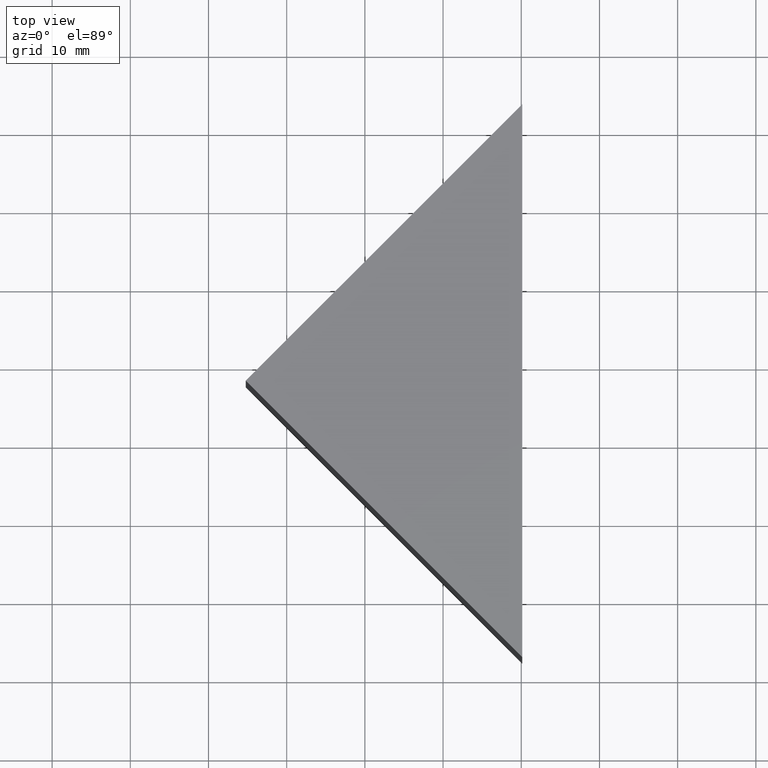
[diagram: clean part render]
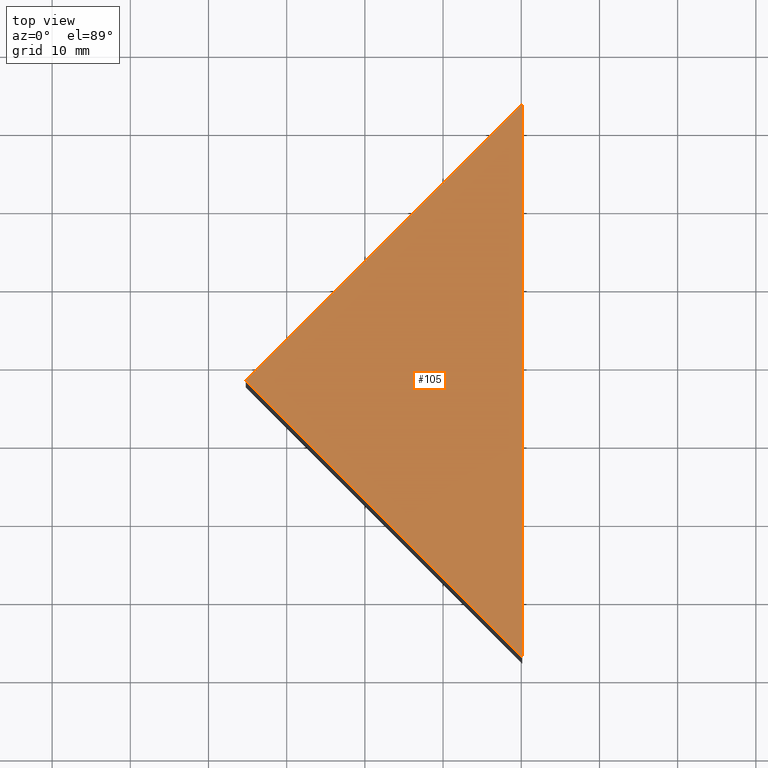
[diagram: same view with one face highlighted and labeled with its STEP entity id]
A machine part, top view. The second image highlights one B-rep face of the part: STEP entity #105.
In plain terms, the highlighted planar face has unit normal (-0, 0, 1).
Its self-contained STEP definition (entity closure, byte-faithful):
#7 = AXIS2_PLACEMENT_3D ( 'NONE', #95, #96, #53 ) ;
#8 = DIRECTION ( 'NONE',  ( 0.7071067811865465700, -0.7071067811865484600, 0.0000000000000000000 ) ) ;
#26 = ORIENTED_EDGE ( 'NONE', *, *, #52, .T. ) ;
#38 = ORIENTED_EDGE ( 'NONE', *, *, #140, .T. ) ;
#51 = VERTEX_POINT ( 'NONE', #156 ) ;
#52 = EDGE_CURVE ( 'NONE', #117, #57, #150, .T. ) ;
#53 = DIRECTION ( 'NONE',  ( 1.000000000000000000, 0.0000000000000000000, 0.0000000000000000000 ) ) ;
#54 = CARTESIAN_POINT ( 'NONE',  ( 590.1220385852766400, 173.1122645876679900, 50.00000000000000000 ) ) ;
#56 = VECTOR ( 'NONE', #8, 1000.000000000000100 ) ;
#57 = VERTEX_POINT ( 'NONE', #85 ) ;
#68 = PLANE ( 'NONE',  #7 ) ;
#74 = ORIENTED_EDGE ( 'NONE', *, *, #123, .T. ) ;
#85 = CARTESIAN_POINT ( 'NONE',  ( 554.7666995259492100, 137.7569255283406200, 50.00000000000000000 ) ) ;
#95 = CARTESIAN_POINT ( 'NONE',  ( 0.0000000000000000000, 0.0000000000000000000, 50.00000000000000000 ) ) ;
#96 = DIRECTION ( 'NONE',  ( -0.0000000000000000000, 0.0000000000000000000, 1.000000000000000000 ) ) ;
#105 = ADVANCED_FACE ( 'NONE', ( #159 ), #68, .T. ) ;
#109 = DIRECTION ( 'NONE',  ( 1.570092458683774700E-015, 1.000000000000000000, 0.0000000000000000000 ) ) ;
#113 = VECTOR ( 'NONE', #167, 1000.000000000000000 ) ;
#117 = VERTEX_POINT ( 'NONE', #54 ) ;
#118 = CARTESIAN_POINT ( 'NONE',  ( 554.7666995259492100, 137.7569255283406200, 50.00000000000000000 ) ) ;
#122 = CARTESIAN_POINT ( 'NONE',  ( 590.1220385852765300, 102.4015864690132200, 50.00000000000000000 ) ) ;
#123 = EDGE_CURVE ( 'NONE', #51, #117, #166, .T. ) ;
#125 = EDGE_LOOP ( 'NONE', ( #38, #74, #26 ) ) ;
#140 = EDGE_CURVE ( 'NONE', #57, #51, #152, .T. ) ;
#145 = VECTOR ( 'NONE', #109, 1000.000000000000000 ) ;
#150 = LINE ( 'NONE', #118, #113 ) ;
#151 = CARTESIAN_POINT ( 'NONE',  ( 554.7666995259492100, 137.7569255283406200, 50.00000000000000000 ) ) ;
#152 = LINE ( 'NONE', #151, #56 ) ;
#156 = CARTESIAN_POINT ( 'NONE',  ( 590.1220385852765300, 102.4015864690132200, 50.00000000000000000 ) ) ;
#159 = FACE_OUTER_BOUND ( 'NONE', #125, .T. ) ;
#166 = LINE ( 'NONE', #122, #145 ) ;
#167 = DIRECTION ( 'NONE',  ( -0.7071067811865481300, -0.7071067811865470200, -0.0000000000000000000 ) ) ;